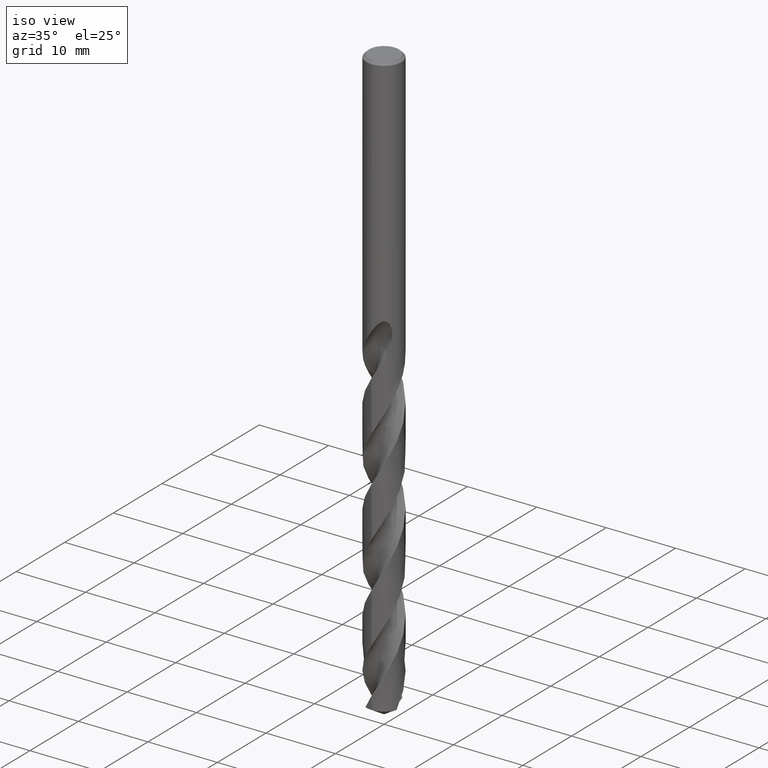
[diagram: clean part render]
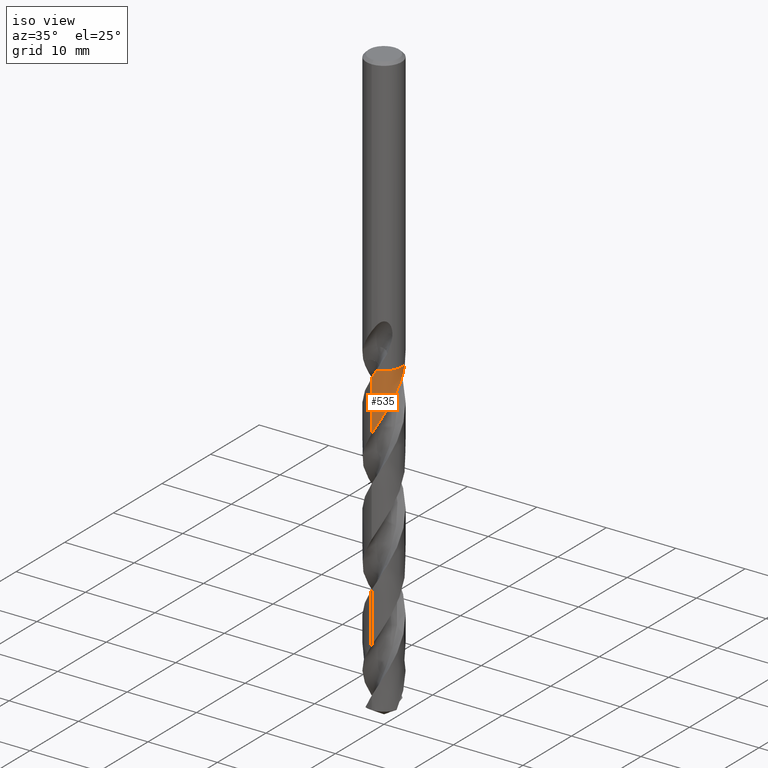
[diagram: same view with one face highlighted and labeled with its STEP entity id]
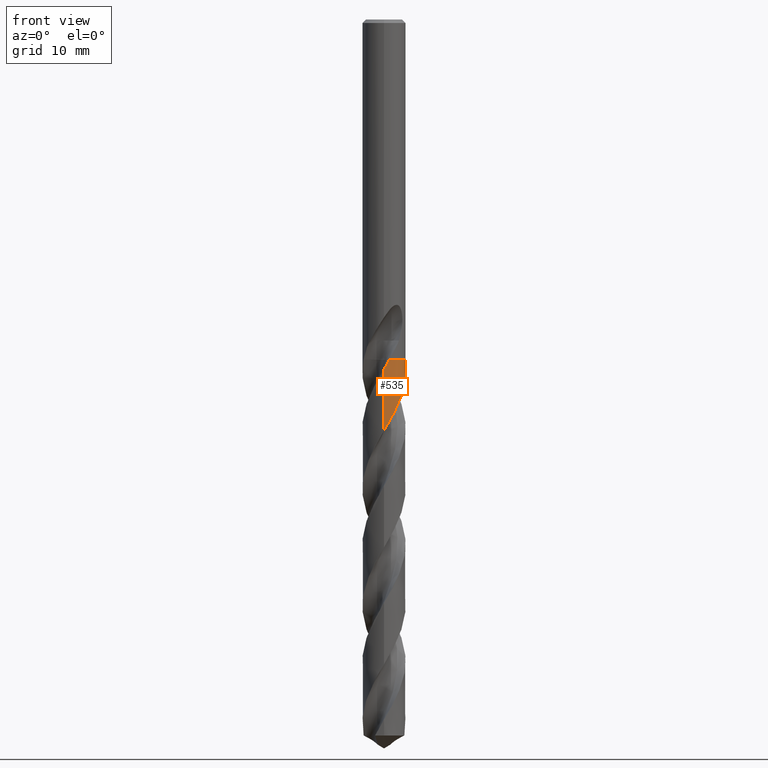
[diagram: same view with one face highlighted and labeled with its STEP entity id]
A machine part, iso view. The second image highlights one B-rep face of the part: STEP entity #535.
A second angle (front view) of the same face is appended — the face is thin or edge-on in the first view.
In plain terms, the highlighted conical surface has half-angle 0 deg.
Its self-contained STEP definition (entity closure, byte-faithful):
#311=EDGE_CURVE('',#575,#663,#850,.T.);
#323=EDGE_CURVE('',#663,#437,#864,.T.);
#339=VERTEX_POINT('',#883);
#355=VERTEX_POINT('',#901);
#367=EDGE_CURVE('',#597,#355,#914,.T.);
#437=VERTEX_POINT('',#992);
#535=ADVANCED_FACE('',(#1099),#1100,.T.);
#575=VERTEX_POINT('',#1143);
#597=VERTEX_POINT('',#1165);
#615=EDGE_CURVE('',#355,#575,#1184,.T.);
#661=EDGE_CURVE('',#339,#597,#1234,.T.);
#663=VERTEX_POINT('',#1236);
#733=EDGE_CURVE('',#339,#437,#1312,.T.);
#850=B_SPLINE_CURVE_WITH_KNOTS('',3,(#1726,#1727,#1728,#1729),.UNSPECIFIED.,.F.,.F.,(4,4),(0.0,0.0070732379572861),.UNSPECIFIED.);
#864=B_SPLINE_CURVE_WITH_KNOTS('',3,(#1746,#1747,#1748,#1749,#1750,#1751,#1752,#1753,#1754,#1755,#1756,#1757,#1758,#1759,#1760,#1761,#1762,#1763,#1764,#1765,#1766,#1767,#1768,#1769,#1770,#1771,#1772,#1773,#1774,#1775,#1776,#1777,#1778,#1779,#1780,#1781,#1782,#1783,#1784,#1785,#1786,#1787,#1788,#1789,#1790,#1791,#1792,#1793,#1794,#1795,#1796,#1797,#1798,#1799,#1800,#1801,#1802,#1803,#1804,#1805,#1806,#1807,#1808,#1809,#1810,#1811,#1812,#1813,#1814,#1815,#1816,#1817,#1818,#1819,#1820,#1821,#1822,#1823,#1824,#1825,#1826,#1827,#1828,#1829,#1830,#1831,#1832,#1833,#1834,#1835,#1836,#1837,#1838,#1839,#1840,#1841,#1842,#1843,#1844,#1845,#1846,#1847,#1848,#1849,#1850,#1851,#1852,#1853,#1854,#1855,#1856,#1857,#1858,#1859,#1860,#1861,#1862,#1863,#1864,#1865,#1866,#1867,#1868,#1869,#1870,#1871),.UNSPECIFIED.,.F.,.F.,(4,2,2,2,2,2,2,2,2,2,2,2,2,2,2,2,2,2,2,2,2,2,2,2,2,2,2,2,2,2,2,2,2,2,2,2,2,2,2,2,2,2,2,2,2,2,2,2,2,2,2,2,2,2,2,2,2,2,2,2,2,2,4),(0.0,0.0306110248030663,0.60207399531116,1.51849139551361,2.29795398740141,2.96630504533756,4.25768006231398,4.47708938538397,6.05637734257809,6.15922025879785,7.65932808870827,8.1397327238071,9.20122313546279,9.84685685983005,10.8494677198294,11.6298685116242,12.7031973609638,13.7295086033421,14.6968175867964,14.9173300482046,16.5106455537176,16.6131324117002,18.1238903914031,18.5894008102198,19.6561423851359,20.2904737917763,21.2936993312534,22.0706492201514,23.147357361307,24.1722363495519,25.1390410061643,25.3581826871157,26.9500005743526,27.0523586330563,28.565338302075,29.028119159505,30.104683455678,31.1289042086296,32.0951858161462,32.3140882440615,33.9060921188767,34.0082299387984,35.5228877573887,35.9831760378232,37.0624719095462,37.6728920341911,38.5758839027592,39.5449705432874,40.8128443098191,41.0252337425786,41.8574103081777,42.3484955846575,42.8897141316946,43.8961489170679,44.6565790336886,45.7178067843413,46.3604968133684,47.3580685381993,47.6019183729416,48.0536308698178,48.8543098733893,50.0657823850553,51.2758324763234),.UNSPECIFIED.);
#883=CARTESIAN_POINT('',(-4.18103386524412E-014,-2.54991895061477,-48.5079718870816));
#901=CARTESIAN_POINT('',(2.39970867555397,0.862199676682257,-40.1));
#914=B_SPLINE_CURVE_WITH_KNOTS('',3,(#2618,#2619,#2620,#2621),.UNSPECIFIED.,.F.,.F.,(4,4),(0.0,0.00773376996329799),.UNSPECIFIED.);
#992=CARTESIAN_POINT('',(-7.61547049680723E-015,-2.54990257276698,-41.2414802514662));
#1099=FACE_OUTER_BOUND('',#6219,.T.);
#1100=CONICAL_SURFACE('',#6220,2.54995,2.25388655242409E-006);
#1143=CARTESIAN_POINT('',(0.655986362267026,-2.46407627773973,-40.1));
#1165=CARTESIAN_POINT('',(2.40069878164075,0.859439026745192,-40.105));
#1184=CIRCLE('',#6662,2.5499);
#1234=B_SPLINE_CURVE_WITH_KNOTS('',3,(#7759,#7760,#7761,#7762,#7763,#7764,#7765,#7766,#7767,#7768,#7769,#7770,#7771,#7772,#7773,#7774,#7775,#7776,#7777,#7778,#7779,#7780,#7781,#7782,#7783,#7784,#7785,#7786,#7787,#7788,#7789,#7790,#7791,#7792,#7793,#7794,#7795,#7796,#7797,#7798,#7799,#7800,#7801,#7802,#7803,#7804,#7805,#7806,#7807,#7808,#7809,#7810,#7811,#7812,#7813,#7814,#7815,#7816,#7817,#7818,#7819,#7820,#7821,#7822,#7823,#7824,#7825,#7826,#7827,#7828,#7829,#7830,#7831,#7832,#7833,#7834,#7835,#7836,#7837,#7838,#7839,#7840,#7841,#7842,#7843,#7844,#7845,#7846,#7847,#7848,#7849,#7850,#7851,#7852,#7853,#7854,#7855,#7856,#7857,#7858,#7859,#7860,#7861,#7862,#7863,#7864,#7865,#7866,#7867,#7868,#7869,#7870,#7871,#7872,#7873,#7874,#7875,#7876,#7877,#7878,#7879,#7880,#7881,#7882,#7883,#7884,#7885,#7886,#7887,#7888,#7889,#7890,#7891,#7892,#7893,#7894,#7895,#7896),.UNSPECIFIED.,.F.,.F.,(4,2,2,2,2,2,2,2,2,2,2,2,2,2,2,2,2,2,2,2,2,2,2,2,2,2,2,2,2,2,2,2,2,2,2,2,2,2,2,2,2,2,2,2,2,2,2,2,2,2,2,2,2,2,2,2,2,2,2,2,2,2,2,2,2,2,2,2,4),(0.0,0.876116040993606,1.31109187851722,2.17221227104514,3.14388471820263,3.98175082099877,4.95334109929901,5.34108152723424,6.44273463741684,7.30550379132506,8.16721992562029,9.03145209620999,9.89325800907403,10.7589523244151,11.620907934692,12.4880188771186,13.3602634254353,14.2321283371004,15.0948537255988,15.9644227174241,16.8154550064403,17.6869935077301,18.4973748359888,18.9351772760892,19.3252157748934,20.4274102040153,21.2963893414109,22.1640847917716,22.8935433004434,24.3541080037071,24.51279756849,25.5829227938178,25.9775848798191,26.3675221219539,27.5061046021191,28.2130040266647,29.7365872524969,29.8037416671885,30.8790235837933,31.2739574229986,31.6626721555421,32.7737983118573,33.4892495070884,34.9795208992779,35.1248962242159,36.2146102695938,36.5945965192655,36.9669055379445,38.3583060078654,38.7301439922204,40.1231803524913,40.494611869209,41.8839889859939,42.2589433142087,43.6459323464483,44.0236409261232,45.4146301017002,45.7934799445376,46.9051879560178,48.1229976123306,49.0449249157941,49.3882107874861,50.5976809020529,51.20204521965,51.5078709291044,51.6607372797967,51.7370819277907,51.7752261418421,51.813386488019),.UNSPECIFIED.);
#1236=CARTESIAN_POINT('',(0.653176018318217,-2.46482274343731,-40.105));
#1312=LINE('',#11280,#11281);
#1726=CARTESIAN_POINT('',(0.655986362267008,-2.46407627773972,-40.1));
#1727=CARTESIAN_POINT('',(0.654840978575595,-2.46438120652848,-40.1020381562174));
#1728=CARTESIAN_POINT('',(0.653695357996774,-2.46468534316109,-40.1040762976077));
#1729=CARTESIAN_POINT('',(0.652549501336915,-2.46498868731408,-40.1061144244885));
#1746=CARTESIAN_POINT('',(0.65341679781216,-2.46475892348229,-40.1045716875792));
#1747=CARTESIAN_POINT('',(0.648458361632961,-2.46607344400292,-40.113392171048));
#1748=CARTESIAN_POINT('',(0.64349582834092,-2.46737303524252,-40.1222116584224));
#1749=CARTESIAN_POINT('',(0.545822363085598,-2.49263713910633,-40.2956598582222));
#1750=CARTESIAN_POINT('',(0.451840484009104,-2.51137467823925,-40.4600238101064));
#1751=CARTESIAN_POINT('',(0.204993305415851,-2.54628254259192,-40.888665063578));
#1752=CARTESIAN_POINT('',(0.0514680181996096,-2.55398547827901,-41.1526343278799));
#1753=CARTESIAN_POINT('',(-0.231922675051739,-2.5426781744098,-41.6414231389725));
#1754=CARTESIAN_POINT('',(-0.361679261971499,-2.52749705539546,-41.8657154733963));
#1755=CARTESIAN_POINT('',(-0.599651651463607,-2.48091986037532,-42.2827962626858));
#1756=CARTESIAN_POINT('',(-0.707935658749824,-2.45221571435106,-42.4749252519375));
#1757=CARTESIAN_POINT('',(-1.01883019984391,-2.34749668336479,-43.0396279184844));
#1758=CARTESIAN_POINT('',(-1.21414640341272,-2.25269857124144,-43.4103328665797));
#1759=CARTESIAN_POINT('',(-1.42593327336335,-2.11426053462881,-43.8456145556473));
#1760=CARTESIAN_POINT('',(-1.45624452475232,-2.09349825178277,-43.9088076603436));
#1761=CARTESIAN_POINT('',(-1.70094541376603,-1.9180013640603,-44.4271656019262));
#1762=CARTESIAN_POINT('',(-1.89063281724301,-1.73134509678267,-44.8801122508001));
#1763=CARTESIAN_POINT('',(-2.05849045707899,-1.504979873474,-45.3648345231205));
#1764=CARTESIAN_POINT('',(-2.06861095766818,-1.49103868373576,-45.3944638596201));
#1765=CARTESIAN_POINT('',(-2.22414387903373,-1.27215754677023,-45.8564491319728));
#1766=CARTESIAN_POINT('',(-2.33866737260495,-1.04684599297798,-46.2873097555131));
#1767=CARTESIAN_POINT('',(-2.44388942332487,-0.7320880176408,-46.8581777801868));
#1768=CARTESIAN_POINT('',(-2.4657720657558,-0.654605545344608,-46.9965327776978));
#1769=CARTESIAN_POINT('',(-2.52411949992804,-0.403098139419721,-47.4411198905804));
#1770=CARTESIAN_POINT('',(-2.54608989330956,-0.226153705631492,-47.7465629342281));
#1771=CARTESIAN_POINT('',(-2.55151034898183,0.0598676700042621,-48.2386938298842));
#1772=CARTESIAN_POINT('',(-2.54667351675434,0.168022333525758,-48.4244670410237));
#1773=CARTESIAN_POINT('',(-2.51684824467194,0.44244909947595,-48.8997585072289));
#1774=CARTESIAN_POINT('',(-2.48225423130584,0.607238357849048,-49.1884145351781));
#1775=CARTESIAN_POINT('',(-2.39232430179612,0.892181703052572,-49.7024968174826));
#1776=CARTESIAN_POINT('',(-2.34344143874681,1.01364128671169,-49.9269311930683));
#1777=CARTESIAN_POINT('',(-2.20576219692578,1.29191230328532,-50.4615461404444));
#1778=CARTESIAN_POINT('',(-2.10919509234499,1.44422089817469,-50.7704325034813));
#1779=CARTESIAN_POINT('',(-1.89042402265124,1.71988617979361,-51.3758437910306));
#1780=CARTESIAN_POINT('',(-1.7701664513594,1.84341503613938,-51.6710486721201));
#1781=CARTESIAN_POINT('',(-1.51432439350098,2.05795944063008,-52.2460532845574));
#1782=CARTESIAN_POINT('',(-1.38049846919449,2.15003446585054,-52.5242824582503));
#1783=CARTESIAN_POINT('',(-1.20646358388564,2.24676404832663,-52.8667652258964));
#1784=CARTESIAN_POINT('',(-1.1737764775043,2.26401229919792,-52.93031856607));
#1785=CARTESIAN_POINT('',(-0.901941176752318,2.39998575937141,-53.4534176910216));
#1786=CARTESIAN_POINT('',(-0.645765240314128,2.48122871776798,-53.9107075292403));
#1787=CARTESIAN_POINT('',(-0.36465221823308,2.52378255516331,-54.3997622089718));
#1788=CARTESIAN_POINT('',(-0.347640329959009,2.52618211648521,-54.4293130885703));
#1789=CARTESIAN_POINT('',(-0.0794860796893044,2.56124597109491,-54.8946473702629));
#1790=CARTESIAN_POINT('',(0.175228634885969,2.55649281690702,-55.3288281638643));
#1791=CARTESIAN_POINT('',(0.502030609671726,2.50124606529885,-55.8989174354936));
#1792=CARTESIAN_POINT('',(0.578336832237493,2.48471030125669,-56.0331006084126));
#1793=CARTESIAN_POINT('',(0.826530271620947,2.41888049181114,-56.4752538434247));
#1794=CARTESIAN_POINT('',(0.994094675236199,2.3549868977268,-56.7824347761307));
#1795=CARTESIAN_POINT('',(1.24851319625643,2.22591991824121,-57.2732056014189));
#1796=CARTESIAN_POINT('',(1.34024637822109,2.17191915123039,-57.4558813121442));
#1797=CARTESIAN_POINT('',(1.56761471336169,2.01818056516773,-57.9284636247758));
#1798=CARTESIAN_POINT('',(1.69729972723084,1.91041383471862,-58.2175222281379));
#1799=CARTESIAN_POINT('',(1.90695393949207,1.69785451728031,-58.7311906538986));
#1800=CARTESIAN_POINT('',(1.99118002024588,1.59823919292735,-58.95481277638));
#1801=CARTESIAN_POINT('',(2.17305629849015,1.34633201747155,-59.4898256367463));
#1802=CARTESIAN_POINT('',(2.26291252371758,1.18914470174246,-59.7999170419616));
#1803=CARTESIAN_POINT('',(2.40444604384408,0.866267503416645,-60.4063619480295));
#1804=CARTESIAN_POINT('',(2.45734065785561,0.702291900804457,-60.7013931041798));
#1805=CARTESIAN_POINT('',(2.52729462413837,0.37586686497238,-61.2762866520881));
#1806=CARTESIAN_POINT('',(2.5460842274087,0.214470315308087,-61.5545834954588));
#1807=CARTESIAN_POINT('',(2.55016666307663,0.0155585236313921,-61.896792646319));
#1808=CARTESIAN_POINT('',(2.55012597576281,-0.0211993698837881,-61.9600006054434));
#1809=CARTESIAN_POINT('',(2.54322628268421,-0.324825567498916,-62.4826839087863));
#1810=CARTESIAN_POINT('',(2.49527734127519,-0.589220871536768,-62.9399036521376));
#1811=CARTESIAN_POINT('',(2.40148507545551,-0.857567819418642,-63.4288746054694));
#1812=CARTESIAN_POINT('',(2.39565573879319,-0.873720189349982,-63.458411690266));
#1813=CARTESIAN_POINT('',(2.30109088228897,-1.12768463956814,-63.924718562223));
#1814=CARTESIAN_POINT('',(2.17745228674845,-1.35109452740975,-64.3598653873269));
#1815=CARTESIAN_POINT('',(1.97554931915236,-1.61416032122847,-64.9302569050153));
#1816=CARTESIAN_POINT('',(1.92548786826956,-1.67355830265476,-65.0637621928495));
#1817=CARTESIAN_POINT('',(1.75027962320578,-1.86317011289168,-65.5083100824459));
#1818=CARTESIAN_POINT('',(1.6139539630564,-1.98244519566475,-65.8185358943539));
#1819=CARTESIAN_POINT('',(1.32545900900543,-2.18517823227262,-66.4250953411327));
#1820=CARTESIAN_POINT('',(1.17522290847153,-2.26950509950568,-66.7201065688114));
#1821=CARTESIAN_POINT('',(0.869133435794646,-2.4027426203081,-67.2949873002826));
#1822=CARTESIAN_POINT('',(0.714653410471515,-2.45313756327235,-67.5732920872815));
#1823=CARTESIAN_POINT('',(0.520506324529699,-2.49654421740802,-67.9154766234166));
#1824=CARTESIAN_POINT('',(0.484487716590308,-2.50378340564135,-67.9786517056524));
#1825=CARTESIAN_POINT('',(0.185351159087755,-2.557210263381,-68.5016185936257));
#1826=CARTESIAN_POINT('',(-0.0834914410762897,-2.56257436671964,-68.9591461949627));
#1827=CARTESIAN_POINT('',(-0.365250034296636,-2.52373013752518,-69.448386497027));
#1828=CARTESIAN_POINT('',(-0.382209838629485,-2.52121742153456,-69.4778769504681));
#1829=CARTESIAN_POINT('',(-0.650263005925383,-2.47873674814321,-69.9448717138833));
#1830=CARTESIAN_POINT('',(-0.894122221388629,-2.40158011015977,-70.380735089123));
#1831=CARTESIAN_POINT('',(-1.19192665451802,-2.25557770078641,-70.9512158634089));
#1832=CARTESIAN_POINT('',(-1.25972066178575,-2.21842648616605,-71.0840803590003));
#1833=CARTESIAN_POINT('',(-1.48041700549107,-2.08411118174758,-71.5289499476991));
#1834=CARTESIAN_POINT('',(-1.62472663703465,-1.973695186193,-71.840131081073));
#1835=CARTESIAN_POINT('',(-1.83047754429545,-1.77826366412167,-72.3282785833997));
#1836=CARTESIAN_POINT('',(-1.90045373058899,-1.70327170832496,-72.5043242527268));
#1837=CARTESIAN_POINT('',(-2.06225421538471,-1.50746294302604,-72.9416671986653));
#1838=CARTESIAN_POINT('',(-2.14821272679341,-1.38222455108354,-73.2023127146867));
#1839=CARTESIAN_POINT('',(-2.30232203187319,-1.10822882179536,-73.7432474886115));
#1840=CARTESIAN_POINT('',(-2.36831205246553,-0.959129261159706,-74.0222831160915));
#1841=CARTESIAN_POINT('',(-2.48680045690801,-0.602898761669806,-74.6688053684026));
#1842=CARTESIAN_POINT('',(-2.52845353529759,-0.393283187101468,-75.0337965452274));
#1843=CARTESIAN_POINT('',(-2.5460889108617,-0.145260239547401,-75.4614876580021));
#1844=CARTESIAN_POINT('',(-2.54787150687976,-0.109634779667207,-75.5228325813057));
#1845=CARTESIAN_POINT('',(-2.55296122602444,0.0656858507480261,-75.8247155658775));
#1846=CARTESIAN_POINT('',(-2.5455281502674,0.205462214680647,-76.0651011305932));
#1847=CARTESIAN_POINT('',(-2.51556215790058,0.425622187358319,-76.4475623323231));
#1848=CARTESIAN_POINT('',(-2.50048183282356,0.50676089971293,-76.5893843556845));
#1849=CARTESIAN_POINT('',(-2.46055700018464,0.675528932941884,-76.8876952250859));
#1850=CARTESIAN_POINT('',(-2.43491644120698,0.762792809817475,-77.043889184055));
#1851=CARTESIAN_POINT('',(-2.34846097254041,1.00782000097649,-77.4912654811308));
#1852=CARTESIAN_POINT('',(-2.27651985559126,1.1612353232889,-77.7817170987084));
#1853=CARTESIAN_POINT('',(-2.12444768476343,1.41614649009292,-78.2923851240152));
#1854=CARTESIAN_POINT('',(-2.05087003199806,1.52074476738961,-78.5116272314967));
#1855=CARTESIAN_POINT('',(-1.85663800235557,1.75700900938751,-79.0382726725427));
#1856=CARTESIAN_POINT('',(-1.72932427465879,1.88246474973114,-79.3444474661345));
#1857=CARTESIAN_POINT('',(-1.50549023792971,2.06097236926459,-79.8369599553962));
#1858=CARTESIAN_POINT('',(-1.41690287235658,2.12284774709626,-80.022383963305));
#1859=CARTESIAN_POINT('',(-1.18154622492527,2.2659356997371,-80.4966301020357));
#1860=CARTESIAN_POINT('',(-1.03012717932917,2.33867365474313,-80.7845933063209));
#1861=CARTESIAN_POINT('',(-0.834119475852672,2.41005922409054,-81.1434681474905));
#1862=CARTESIAN_POINT('',(-0.795282238660768,2.42315256374629,-81.213944316824));
#1863=CARTESIAN_POINT('',(-0.683639881356648,2.45781709402068,-81.4150074745844));
#1864=CARTESIAN_POINT('',(-0.610198494845863,2.47707087719169,-81.5454403987146));
#1865=CARTESIAN_POINT('',(-0.404551799916039,2.52128795821417,-81.9075885219495));
#1866=CARTESIAN_POINT('',(-0.271034847874771,2.53911447781141,-82.1389825419833));
#1867=CARTESIAN_POINT('',(0.066473145087618,2.55723934796931,-82.7208419808646));
#1868=CARTESIAN_POINT('',(0.270270091419434,2.54378777710165,-83.069576731371));
#1869=CARTESIAN_POINT('',(0.670082751709515,2.4687653044427,-83.7697738859194));
#1870=CARTESIAN_POINT('',(0.864714952376614,2.40751354061946,-84.1180011313881));
#1871=CARTESIAN_POINT('',(1.05003862883416,2.32377255297417,-84.4678054214798));
#2618=CARTESIAN_POINT('',(2.40102893419781,0.85851624552033,-40.1066708637254));
#2619=CARTESIAN_POINT('',(2.40058979370881,0.859744383305906,-40.1044472356405));
#2620=CARTESIAN_POINT('',(2.40014970738148,0.86097219405642,-40.1022236154982));
#2621=CARTESIAN_POINT('',(2.39970867555397,0.862199676682268,-40.1));
#6219=EDGE_LOOP('',(#12886,#12887,#12888,#12889,#12890,#12891));
#6220=AXIS2_PLACEMENT_3D('',#12892,#12893,#12894);
#6662=AXIS2_PLACEMENT_3D('',#12963,#12964,#12965);
#7759=CARTESIAN_POINT('',(-2.40472471601859,0.848409712443992,-84.4678054214797));
#7760=CARTESIAN_POINT('',(-2.45323868102479,0.710900460394248,-84.2147754003168));
#7761=CARTESIAN_POINT('',(-2.49002509025799,0.569051693800356,-83.9632878887699));
#7762=CARTESIAN_POINT('',(-2.52657791479786,0.352428711000661,-83.5856123029491));
#7763=CARTESIAN_POINT('',(-2.53561618275435,0.280084944590441,-83.460490309212));
#7764=CARTESIAN_POINT('',(-2.55327854816494,0.0637038394174299,-83.0870997575142));
#7765=CARTESIAN_POINT('',(-2.55279907624535,-0.0807424752273583,-82.8382276158718));
#7766=CARTESIAN_POINT('',(-2.52576227269365,-0.386666052374465,-82.3102280043453));
#7767=CARTESIAN_POINT('',(-2.49593476124051,-0.547012403439086,-82.0320809766416));
#7768=CARTESIAN_POINT('',(-2.41241280778449,-0.838087436760392,-81.5106287551144));
#7769=CARTESIAN_POINT('',(-2.36267830844632,-0.969504322696911,-81.2681377695148));
#7770=CARTESIAN_POINT('',(-2.23228080657235,-1.24334317464659,-80.7465894237293));
#7771=CARTESIAN_POINT('',(-2.14838918356087,-1.38322647991759,-80.468394382628));
#7772=CARTESIAN_POINT('',(-2.01331911038101,-1.56627143715693,-80.0764349974011));
#7773=CARTESIAN_POINT('',(-1.97287730150545,-1.61690909226803,-79.9643826122179));
#7774=CARTESIAN_POINT('',(-1.81040524817822,-1.80519057065994,-79.5352758338519));
#7775=CARTESIAN_POINT('',(-1.67538939203139,-1.93119507572419,-79.220645126888));
#7776=CARTESIAN_POINT('',(-1.4121161322491,-2.12819579887779,-78.6553833563314));
#7777=CARTESIAN_POINT('',(-1.28950141738392,-2.20463359831514,-78.4061237033988));
#7778=CARTESIAN_POINT('',(-1.03289519511896,-2.33587120694689,-77.9099169868553));
#7779=CARTESIAN_POINT('',(-0.899284560477442,-2.39050136996524,-77.6633050365427));
#7780=CARTESIAN_POINT('',(-0.623688096050674,-2.47675968617241,-77.1669494738059));
#7781=CARTESIAN_POINT('',(-0.482451510314669,-2.50808429528933,-76.9174298973727));
#7782=CARTESIAN_POINT('',(-0.196747957795219,-2.54645125962297,-76.4210669541908));
#7783=CARTESIAN_POINT('',(-0.0526504409074569,-2.55350781333749,-76.1745731122399));
#7784=CARTESIAN_POINT('',(0.236047134360793,-2.54315514848228,-75.6780954080092));
#7785=CARTESIAN_POINT('',(0.379820128697388,-2.52566853202672,-75.4283389235414));
#7786=CARTESIAN_POINT('',(0.662029540945957,-2.46673796328575,-74.9318457879052));
#7787=CARTESIAN_POINT('',(0.800181116841942,-2.42545816713185,-74.6854761509947));
#7788=CARTESIAN_POINT('',(1.06904625823063,-2.31959489519354,-74.1889141629469));
#7789=CARTESIAN_POINT('',(1.19892476833245,-2.25518408733727,-73.9389561151647));
#7790=CARTESIAN_POINT('',(1.4468472252191,-2.10479248384325,-73.4394818479948));
#7791=CARTESIAN_POINT('',(1.56458707077089,-2.01882435115812,-73.1903937880842));
#7792=CARTESIAN_POINT('',(1.78423699003147,-1.82758272345819,-72.6899283970774));
#7793=CARTESIAN_POINT('',(1.88550116681848,-1.72288634801724,-72.4388209305431));
#7794=CARTESIAN_POINT('',(2.06795502799376,-1.4988557134281,-71.9411305268654));
#7795=CARTESIAN_POINT('',(2.14919144126524,-1.37987348705622,-71.6949357048409));
#7796=CARTESIAN_POINT('',(2.29139475651266,-1.12823273523056,-71.1982879108918));
#7797=CARTESIAN_POINT('',(2.3517691749108,-0.996223878297842,-70.948088973341));
#7798=CARTESIAN_POINT('',(2.4483260677923,-0.726698700420372,-70.4548562177588));
#7799=CARTESIAN_POINT('',(2.48494016868642,-0.589524208307849,-70.2121818087791));
#7800=CARTESIAN_POINT('',(2.53560394011759,-0.306847219993701,-69.7188004665272));
#7801=CARTESIAN_POINT('',(2.54892725384748,-0.162084978615489,-69.4683421010496));
#7802=CARTESIAN_POINT('',(2.55081836098019,0.117394835632443,-68.9867075589441));
#7803=CARTESIAN_POINT('',(2.54106350527875,0.252060446840624,-68.7557613969261));
#7804=CARTESIAN_POINT('',(2.50963419104977,0.457568459485046,-68.3986758097908));
#7805=CARTESIAN_POINT('',(2.49553679085861,0.529057217699082,-68.2735558416982));
#7806=CARTESIAN_POINT('',(2.46318406089049,0.662748326128757,-68.0365285864173));
#7807=CARTESIAN_POINT('',(2.44557236130605,0.725029796509047,-67.9246053006488));
#7808=CARTESIAN_POINT('',(2.36925097120273,0.960392831929331,-67.4976763328491));
#7809=CARTESIAN_POINT('',(2.29429630009666,1.1278618607902,-67.1850594167994));
#7810=CARTESIAN_POINT('',(2.12904214014209,1.41079374070894,-66.6218090994959));
#7811=CARTESIAN_POINT('',(2.04582723284932,1.52894787940068,-66.3725085802043));
#7812=CARTESIAN_POINT('',(1.86052390316277,1.74970694192889,-65.876278548254));
#7813=CARTESIAN_POINT('',(1.75871915999434,1.85201904326111,-65.629685839689));
#7814=CARTESIAN_POINT('',(1.55628395941599,2.02359770833909,-65.1735770598522));
#7815=CARTESIAN_POINT('',(1.45848433749651,2.09515542336948,-64.9645812114443));
#7816=CARTESIAN_POINT('',(1.15152722220525,2.2879452455825,-64.3395402235683));
#7817=CARTESIAN_POINT('',(0.929752347226175,2.38665164375569,-63.9288379884614));
#7818=CARTESIAN_POINT('',(0.672315314009617,2.45986558868472,-63.4667560221011));
#7819=CARTESIAN_POINT('',(0.647017960171443,2.46663987251235,-63.4214635412287));
#7820=CARTESIAN_POINT('',(0.450260536505022,2.51609510417864,-63.0710496939798));
#7821=CARTESIAN_POINT('',(0.274613755953772,2.54131595695823,-62.768349664639));
#7822=CARTESIAN_POINT('',(0.0320499829725809,2.55058739356037,-62.3513427949275));
#7823=CARTESIAN_POINT('',(-0.0333002785996182,2.55056720629908,-62.2390731590193));
#7824=CARTESIAN_POINT('',(-0.162921252574997,2.54555588195647,-62.0155302508984));
#7825=CARTESIAN_POINT('',(-0.227117953862012,2.5406294370184,-61.904187731991));
#7826=CARTESIAN_POINT('',(-0.477683761068626,2.5118419270673,-61.4690072846554));
#7827=CARTESIAN_POINT('',(-0.661569325146813,2.46982112779209,-61.1477956455833));
#7828=CARTESIAN_POINT('',(-0.94977343310856,2.36935104251742,-60.6230073364029));
#7829=CARTESIAN_POINT('',(-1.05722454683901,2.32337761891465,-60.4212879505589));
#7830=CARTESIAN_POINT('',(-1.38464385209726,2.15594030572486,-59.7873199291939));
#7831=CARTESIAN_POINT('',(-1.58993225882591,2.00925710667631,-59.3609589215571));
#7832=CARTESIAN_POINT('',(-1.77822894672382,1.82762961208111,-58.9086967380001));
#7833=CARTESIAN_POINT('',(-1.78615340210085,1.81988618419471,-58.8895490113289));
#7834=CARTESIAN_POINT('',(-1.92061756131775,1.68675691553789,-58.5626903371191));
#7835=CARTESIAN_POINT('',(-2.03392285497973,1.54832750954395,-58.2575620396161));
#7836=CARTESIAN_POINT('',(-2.16801755213051,1.34395138323035,-57.8376429621679));
#7837=CARTESIAN_POINT('',(-2.20186234945097,1.2877446025056,-57.7249300532633));
#7838=CARTESIAN_POINT('',(-2.26458094308673,1.17389115961127,-57.5009287079337));
#7839=CARTESIAN_POINT('',(-2.29348920984574,1.11635003553773,-57.3895732450978));
#7840=CARTESIAN_POINT('',(-2.39649374134246,0.890415767657183,-56.9611532753419));
#7841=CARTESIAN_POINT('',(-2.45454907605008,0.715101163727195,-56.6465405838528));
#7842=CARTESIAN_POINT('',(-2.51812317108722,0.41872031535375,-56.1254247540089));
#7843=CARTESIAN_POINT('',(-2.53484662959783,0.30120502842217,-55.9206106547751));
#7844=CARTESIAN_POINT('',(-2.56105151503038,-0.0626363654418852,-55.2916612141896));
#7845=CARTESIAN_POINT('',(-2.54301254407087,-0.309445337410986,-54.8732206648193));
#7846=CARTESIAN_POINT('',(-2.48481562270699,-0.573080781518351,-54.4067888335991));
#7847=CARTESIAN_POINT('',(-2.47931512438381,-0.596430491100718,-54.3653084381895));
#7848=CARTESIAN_POINT('',(-2.42963389532211,-0.79470286610624,-54.0123776744746));
#7849=CARTESIAN_POINT('',(-2.36730602453732,-0.964753094495543,-53.7036034477516));
#7850=CARTESIAN_POINT('',(-2.25944169618701,-1.18365778323249,-53.2842785822184));
#7851=CARTESIAN_POINT('',(-2.22949755028293,-1.23912956558038,-53.1759350508093));
#7852=CARTESIAN_POINT('',(-2.16629630386139,-1.34651432179014,-52.9611131499479));
#7853=CARTESIAN_POINT('',(-2.13315047369038,-1.39842848797584,-52.8545834340952));
#7854=CARTESIAN_POINT('',(-1.96726826432563,-1.63860070451899,-52.3510768251059));
#7855=CARTESIAN_POINT('',(-1.81137832063841,-1.8094349998301,-51.9592055438439));
#7856=CARTESIAN_POINT('',(-1.5874268197731,-1.99649272114227,-51.4561254862644));
#7857=CARTESIAN_POINT('',(-1.53885976495135,-2.03416089011755,-51.349820294673));
#7858=CARTESIAN_POINT('',(-1.30194239325976,-2.20456812711494,-50.8464006219359));
#7859=CARTESIAN_POINT('',(-1.09762816136834,-2.31308767171284,-50.4544018423747));
#7860=CARTESIAN_POINT('',(-0.823867629260219,-2.4139422386628,-49.951386659766));
#7861=CARTESIAN_POINT('',(-0.765579189194879,-2.43305493972505,-49.8452856872));
#7862=CARTESIAN_POINT('',(-0.486059195230684,-2.51366948256457,-49.3434406619427));
#7863=CARTESIAN_POINT('',(-0.257969848083654,-2.54720160938072,-48.9527593227836));
#7864=CARTESIAN_POINT('',(0.0335098634392526,-2.5504510864848,-48.4502131754525));
#7865=CARTESIAN_POINT('',(0.0953648583685628,-2.54888621135437,-48.3431945987758));
#7866=CARTESIAN_POINT('',(0.385647749657722,-2.53096227974504,-47.841483851799));
#7867=CARTESIAN_POINT('',(0.611178163248703,-2.48615365853905,-47.4518043019784));
#7868=CARTESIAN_POINT('',(0.886717278329515,-2.39158712453102,-46.9496250698879));
#7869=CARTESIAN_POINT('',(0.944839705630771,-2.36922446094127,-46.8419190917339));
#7870=CARTESIAN_POINT('',(1.21302350062849,-2.25460538331774,-46.3387951709028));
#7871=CARTESIAN_POINT('',(1.41077587462031,-2.13644208559225,-45.9483858937575));
#7872=CARTESIAN_POINT('',(1.6389348738035,-1.954442885489,-45.4452475337996));
#7873=CARTESIAN_POINT('',(1.68625205217673,-1.91376569666782,-45.3373228729858));
#7874=CARTESIAN_POINT('',(1.86645608439888,-1.74697614531916,-44.9137371294228));
#7875=CARTESIAN_POINT('',(1.98719854106036,-1.60834516396747,-44.6005825345182));
#7876=CARTESIAN_POINT('',(2.2070775994015,-1.29277639561338,-43.9393568755605));
#7877=CARTESIAN_POINT('',(2.3020896399043,-1.11484296568254,-43.592523567113));
#7878=CARTESIAN_POINT('',(2.43063981759643,-0.785621980439739,-42.9852595666845));
#7879=CARTESIAN_POINT('',(2.4731245987694,-0.639312809925212,-42.7250145687765));
#7880=CARTESIAN_POINT('',(2.51318602713262,-0.43486475805739,-42.3655859249555));
#7881=CARTESIAN_POINT('',(2.52222741669902,-0.378943776956618,-42.2677194224359));
#7882=CARTESIAN_POINT('',(2.55468196298378,-0.124550844245828,-41.8259507122802));
#7883=CARTESIAN_POINT('',(2.55657696176641,0.0757485089747802,-41.4857228470607));
#7884=CARTESIAN_POINT('',(2.52440350184683,0.373268241552907,-40.9697188844944));
#7885=CARTESIAN_POINT('',(2.50793690966129,0.471338892282551,-40.7971365706365));
#7886=CARTESIAN_POINT('',(2.474518018767,0.617489430084797,-40.5384372790291));
#7887=CARTESIAN_POINT('',(2.46181160059565,0.666362048560623,-40.4515928122038));
#7888=CARTESIAN_POINT('',(2.44053145036924,0.739214838083328,-40.3214206578625));
#7889=CARTESIAN_POINT('',(2.43307039549876,0.763415547275692,-40.2780587601828));
#7890=CARTESIAN_POINT('',(2.42132934335491,0.799572289548025,-40.2130630792116));
#7891=CARTESIAN_POINT('',(2.4173267572021,0.811592946495347,-40.1914193172929));
#7892=CARTESIAN_POINT('',(2.41118649423322,0.829584530921306,-40.1589675626773));
#7893=CARTESIAN_POINT('',(2.40911782481507,0.835572876821206,-40.1481567545734));
#7894=CARTESIAN_POINT('',(2.40493376416965,0.847540029556576,-40.126532620577));
#7895=CARTESIAN_POINT('',(2.40282015096458,0.853513681042063,-40.1157297102309));
#7896=CARTESIAN_POINT('',(2.40068594128376,0.859474885059427,-40.1049350620338));
#11280=CARTESIAN_POINT('',(3.12187159106815E-016,-2.54995,-62.2839027107399));
#11281=VECTOR('',#13064,1.0);
#12886=ORIENTED_EDGE('',*,*,#733,.F.);
#12887=ORIENTED_EDGE('',*,*,#661,.T.);
#12888=ORIENTED_EDGE('',*,*,#367,.T.);
#12889=ORIENTED_EDGE('',*,*,#615,.T.);
#12890=ORIENTED_EDGE('',*,*,#311,.T.);
#12891=ORIENTED_EDGE('',*,*,#323,.T.);
#12892=CARTESIAN_POINT('',(0.0,0.0,-62.2839027107399));
#12893=DIRECTION('',(0.0,-0.0,-1.0));
#12894=DIRECTION('',(0.0,1.0,0.0));
#12963=CARTESIAN_POINT('',(0.0,0.0,-40.1));
#12964=DIRECTION('',(0.0,0.0,-1.0));
#12965=DIRECTION('',(0.0,1.0,0.0));
#13064=DIRECTION('',(-2.76012379289101E-022,2.25388655242218E-006,0.99999999999746));